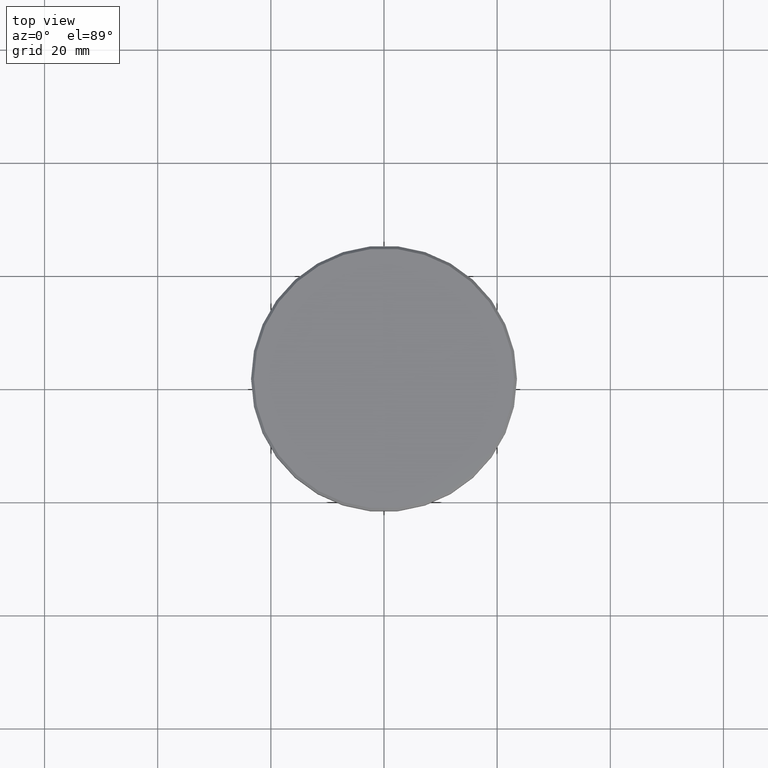
[diagram: clean part render]
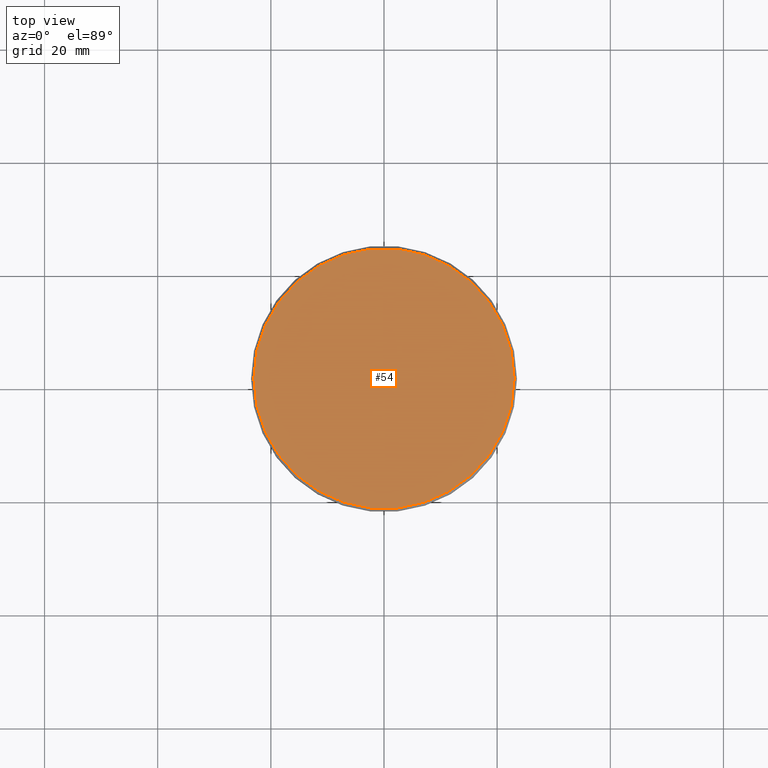
[diagram: same view with one face highlighted and labeled with its STEP entity id]
A machine part, top view. The second image highlights one B-rep face of the part: STEP entity #54.
In plain terms, the highlighted planar face has unit normal (0, -0, 1).
Its self-contained STEP definition (entity closure, byte-faithful):
#19 = DIRECTION ( 'NONE',  ( 1.000000000000000000, 0.000000000000000000, 0.000000000000000000 ) ) ;
#31 = DIRECTION ( 'NONE',  ( 1.000000000000000000, 0.000000000000000000, 0.000000000000000000 ) ) ;
#54 = ADVANCED_FACE ( 'NONE', ( #331 ), #796, .T. ) ;
#59 = VERTEX_POINT ( 'NONE', #340 ) ;
#93 = ORIENTED_EDGE ( 'NONE', *, *, #300, .T. ) ;
#99 = CARTESIAN_POINT ( 'NONE',  ( -23.00000000000001066, 0.000000000000000000, 0.000000000000000000 ) ) ;
#106 = AXIS2_PLACEMENT_3D ( 'NONE', #764, #482, #19 ) ;
#300 = EDGE_CURVE ( 'NONE', #890, #59, #654, .T. ) ;
#331 = FACE_OUTER_BOUND ( 'NONE', #930, .T. ) ;
#340 = CARTESIAN_POINT ( 'NONE',  ( 23.00000000000001066, 2.847303808017596928E-15, 0.000000000000000000 ) ) ;
#482 = DIRECTION ( 'NONE',  ( -0.000000000000000000, -0.000000000000000000, 1.000000000000000000 ) ) ;
#530 = DIRECTION ( 'NONE',  ( 1.000000000000000000, 0.000000000000000000, 0.000000000000000000 ) ) ;
#572 = DIRECTION ( 'NONE',  ( -0.000000000000000000, -0.000000000000000000, 1.000000000000000000 ) ) ;
#654 = CIRCLE ( 'NONE', #730, 23.00000000000001066 ) ;
#694 = CIRCLE ( 'NONE', #106, 23.00000000000001066 ) ;
#713 = ORIENTED_EDGE ( 'NONE', *, *, #820, .T. ) ;
#730 = AXIS2_PLACEMENT_3D ( 'NONE', #1009, #572, #31 ) ;
#764 = CARTESIAN_POINT ( 'NONE',  ( 0.000000000000000000, 0.000000000000000000, 0.000000000000000000 ) ) ;
#770 = AXIS2_PLACEMENT_3D ( 'NONE', #1151, #956, #530 ) ;
#796 = PLANE ( 'NONE',  #770 ) ;
#820 = EDGE_CURVE ( 'NONE', #59, #890, #694, .T. ) ;
#890 = VERTEX_POINT ( 'NONE', #99 ) ;
#930 = EDGE_LOOP ( 'NONE', ( #93, #713 ) ) ;
#956 = DIRECTION ( 'NONE',  ( 0.000000000000000000, -0.000000000000000000, 1.000000000000000000 ) ) ;
#1009 = CARTESIAN_POINT ( 'NONE',  ( 0.000000000000000000, 0.000000000000000000, 0.000000000000000000 ) ) ;
#1151 = CARTESIAN_POINT ( 'NONE',  ( 0.000000000000000000, 0.000000000000000000, 0.000000000000000000 ) ) ;